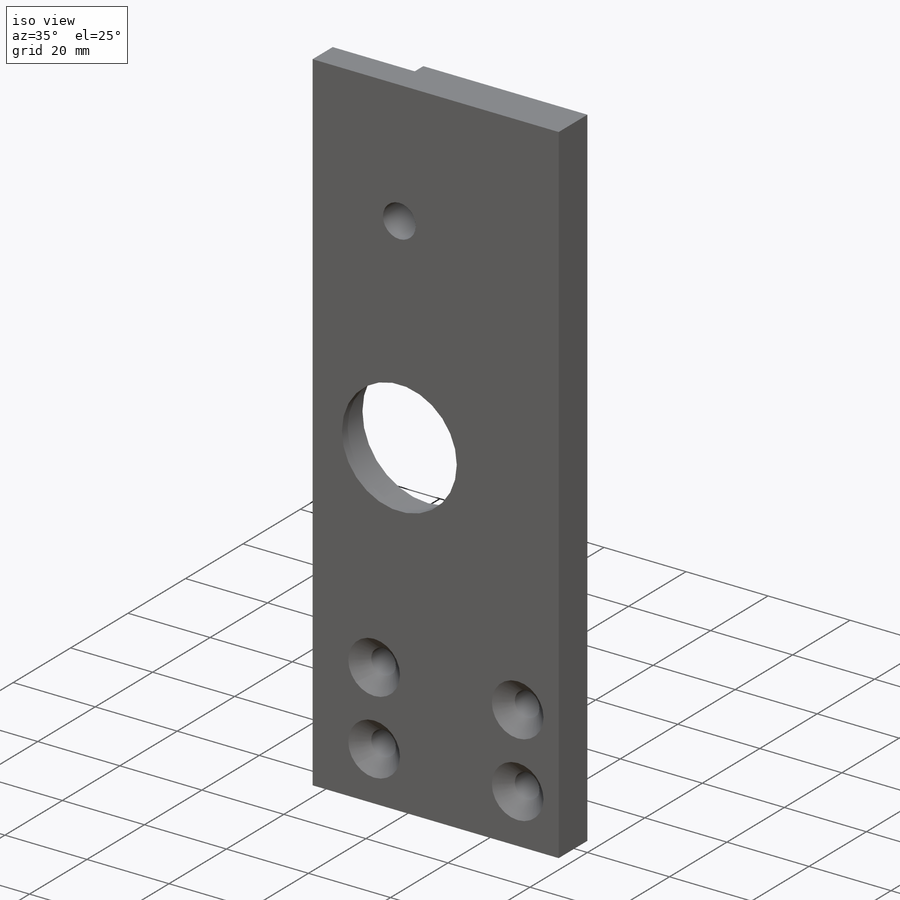
[diagram: iso view]
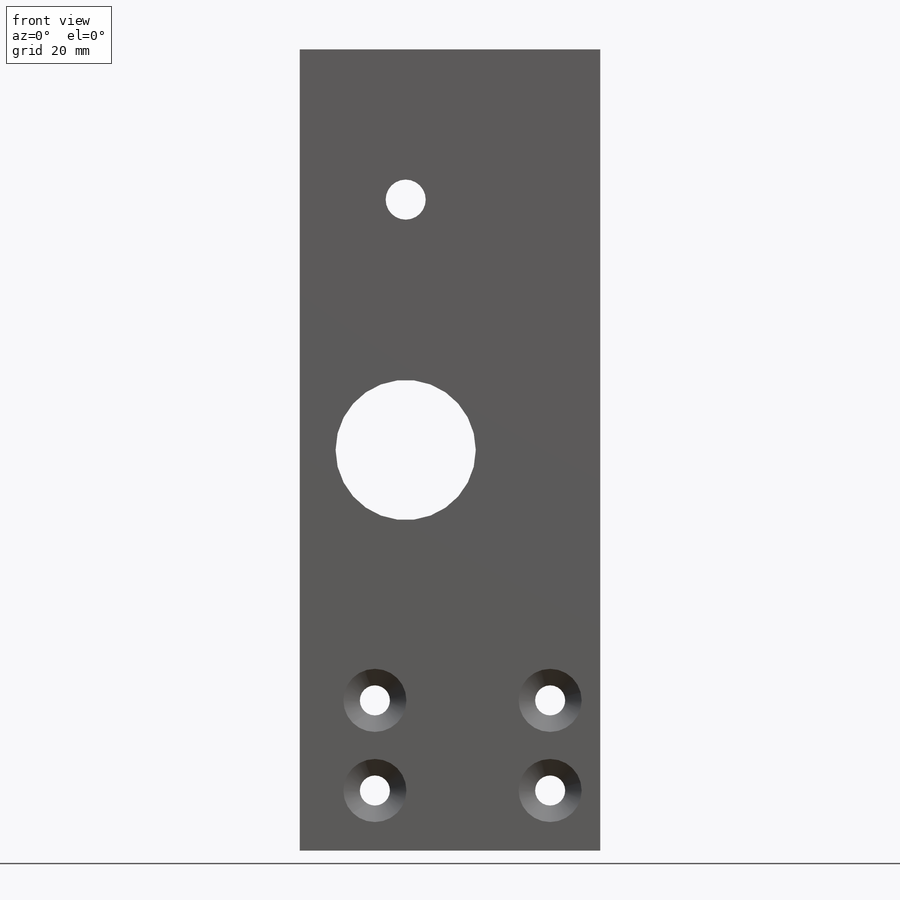
[diagram: front view]
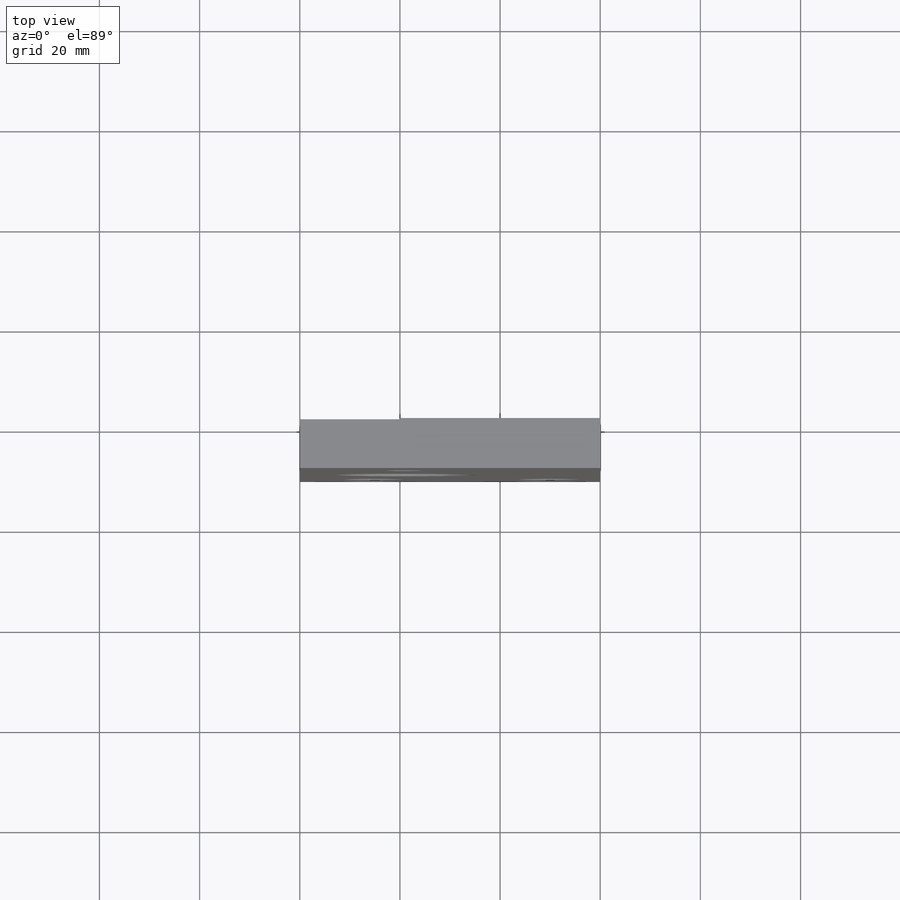
[diagram: top view]
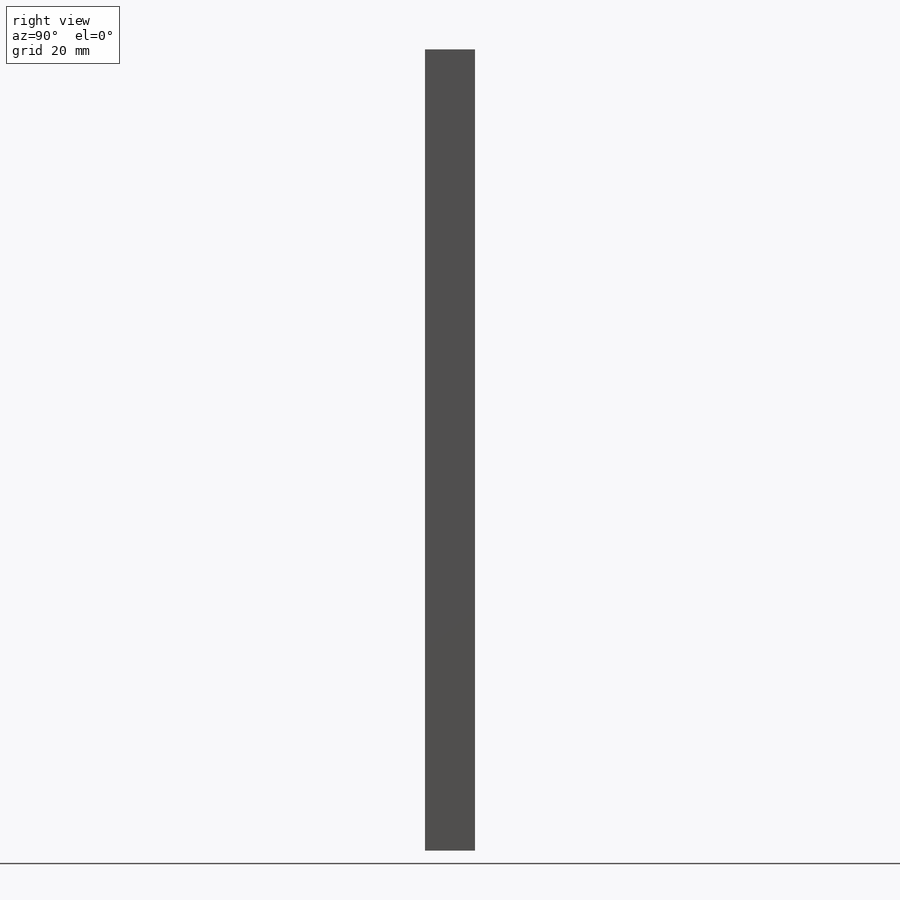
[diagram: right view]
SOLIDWORKS PART (.sldprt)
format: sldprt  version: not decoded by parser v0  size: 333,824 bytes
history: native  units: mm
features: sketch x12, cut_extrude x11, chamfer x4, plane x3, thread x2, material x1, extrude x1 (+9 scaffold rows collapsed)
feature tree (43):
  scaffold x9  (default folders/planes/origin — collapsed)
  material  "Material <nicht festgelegt>"
  plane  "Ebene vorne"
  plane  "Ebene oben"
  plane  "Ebene rechts"
  sketch  "Skizze1"  dims[D1=160.0mm D2=65.0mm]
  extrude  "Aufsatz-Linear austragen1"  Depth=10mm
  sketch  "Skizze2"  dims[D1=32.0mm D2=21.15mm D3=80.0mm]
  cut_extrude  "Schnitt-Linear austragen1"  Depth=8mm
  sketch  "Skizze3"  dims[D1=20.0mm D2=3.0mm]
  cut_extrude  "Schnitt-Linear austragen2"  Depth=15mm
  sketch  "Skizze4"  dims[D1=8.0mm D2=21.15mm D3=30.0mm]
  cut_extrude  "Schnitt-Linear austragen3"  Depth=20mm
  sketch  "Skizze6"  dims[D2=28.0mm D1=21.15mm D3=80.0mm]
  cut_extrude  "Schnitt-Linear austragen4"  Depth=20mm
  sketch  "Skizze7"  dims[c1.D1=3.24mm c1.D2=4.0mm c1.D3=4.0mm c2.D2=5.0mm c2.D3=6.0mm]
  cut_extrude  "Schnitt-Linear austragen5"  [1 undecoded]
  thread  "Gewindedarstellung2"  Diameter=5mm  [1 undecoded]
  sketch  "Skizze8"  dims[c1.D1=3.24mm c1.D3=4.0mm c1.D2=6.0mm c2.D3=5.0mm]
  cut_extrude  "Schnitt-Linear austragen6"  [1 undecoded]
  thread  "Gewindedarstellung1"  Diameter=5mm  [1 undecoded]
  sketch  "Skizze9"  dims[D1=6.0mm D2=12.0mm D3=15.0mm]
  cut_extrude  "Schnitt-Linear austragen7"  Depth=32mm
  chamfer  "Fase1"  Distance=3.3mm Angle=45deg
  sketch  "Skizze10"  dims[D1=6.0mm D2=15.0mm D3=12.0mm]
  cut_extrude  "Schnitt-Linear austragen8"  Depth=32mm
  chamfer  "Fase2"  Distance=3.3mm Angle=45deg
  sketch  "Skizze11"  dims[D1=6.0mm D2=15.0mm D3=30.0mm]
  cut_extrude  "Schnitt-Linear austragen9"  Depth=32mm
  chamfer  "Fase3"  Distance=3.3mm Angle=45deg
  sketch  "Skizze12"  dims[D1=6.0mm D2=15.0mm D3=30.0mm]
  cut_extrude  "Schnitt-Linear austragen10"  Depth=25mm
  chamfer  "Fase4"  Distance=3.3mm Angle=45deg
  sketch  "Skizze13"
  cut_extrude  "Schnitt-Linear austragen11"  Depth=5mm
decode coverage: 27 of 30 modeling features carry decoded parameters
note: 4 parameter values undecoded
note: suppression state not decoded; provenance and decode notes live in map.json
